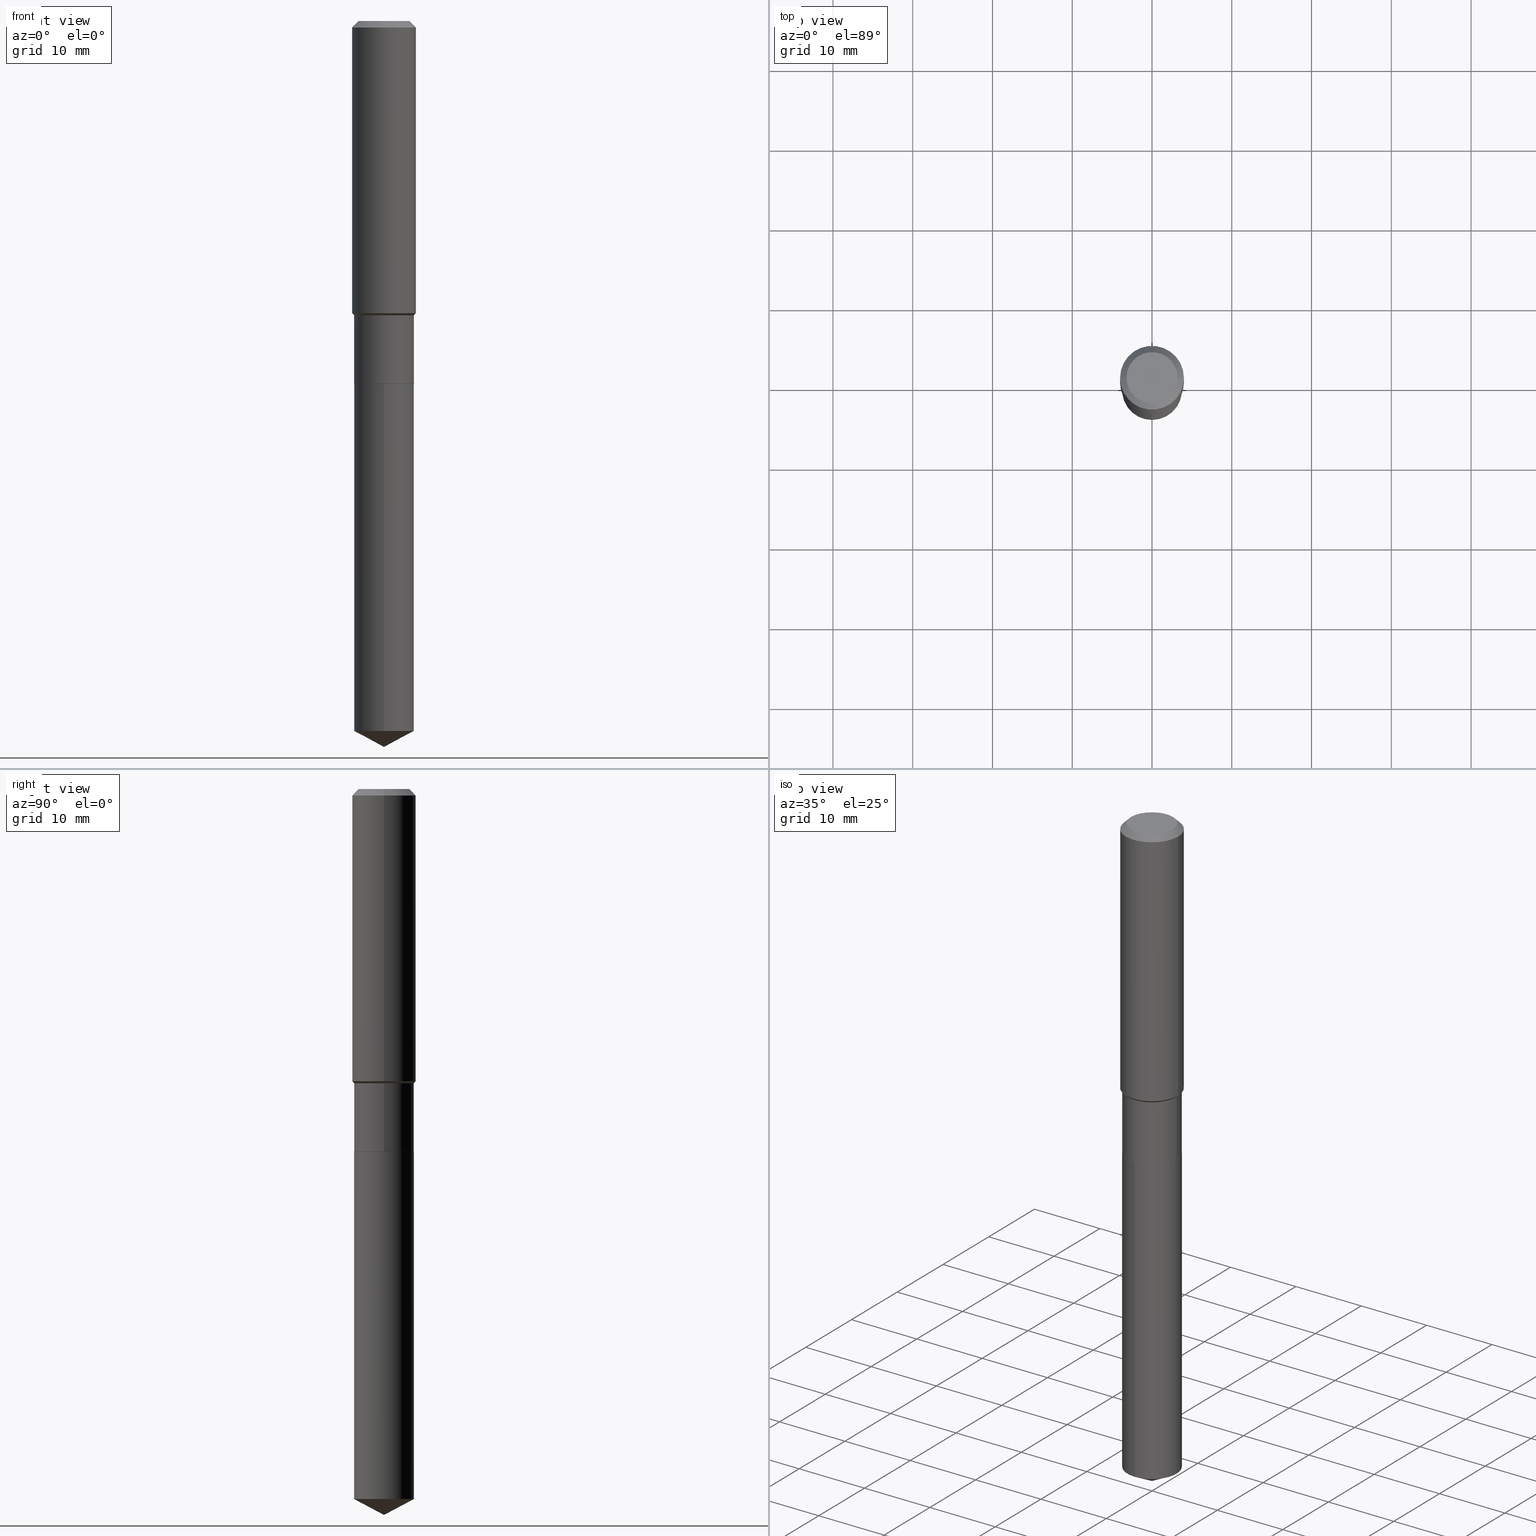
[diagram: canonical four-view strip — front | top / right | iso, engineering-drawing reading convention]
A machine part, canonical four-view strip (front | top / right | iso — engineering-drawing reading convention). The complete STEP part file that produces these views, byte-faithful:
ISO-10303-21;
HEADER;
FILE_DESCRIPTION (( 'STEP AP203' ),
    '1' );
FILE_NAME ('65205.STEP',
    '2024-04-24T21:21:38',
    ( '' ),
    ( '' ),
    'SwSTEP 2.0',
    'SolidWorks 2023',
    '' );
FILE_SCHEMA (( 'CONFIG_CONTROL_DESIGN' ));
ENDSEC;

DATA;
#1 = CARTESIAN_POINT ( 'NONE',  ( 7.703226739483228723E-31, -1.099816621735597661E-16, -0.03150000000000019451 ) ) ;
#2 = VERTEX_POINT ( 'NONE', #211 ) ;
#3 = CARTESIAN_POINT ( 'NONE',  ( 7.703226739483228723E-31, -1.099816621735597661E-16, -0.03150000000000019451 ) ) ;
#4 = VERTEX_POINT ( 'NONE', #469 ) ;
#5 = PRODUCT_DEFINITION_SHAPE ( 'NONE', 'NONE',  #470 ) ;
#6 = VECTOR ( 'NONE', #87, 39.37007874015748143 ) ;
#7 = LINE ( 'NONE', #136, #232 ) ;
#8 =( GEOMETRIC_REPRESENTATION_CONTEXT ( 3 ) GLOBAL_UNCERTAINTY_ASSIGNED_CONTEXT ( ( #423 ) ) GLOBAL_UNIT_ASSIGNED_CONTEXT ( ( #358, #226, #34 ) ) REPRESENTATION_CONTEXT ( 'NONE', 'WORKASPACE' ) );
#9 = CARTESIAN_POINT ( 'NONE',  ( 1.049116349349873935E-15, 0.1476499999999937585, -1.791400000000000992 ) ) ;
#10 = ORIENTED_EDGE ( 'NONE', *, *, #277, .F. ) ;
#11 = LINE ( 'NONE', #159, #6 ) ;
#12 = EDGE_LOOP ( 'NONE', ( #354, #487, #466, #325 ) ) ;
#13 = DIRECTION ( 'NONE',  ( 1.000000000000000000, -6.982962677686265922E-15, 0.000000000000000000 ) ) ;
#14 = ORIENTED_EDGE ( 'NONE', *, *, #351, .T. ) ;
#15 = EDGE_CURVE ( 'NONE', #363, #207, #479, .T. ) ;
#16 = EDGE_CURVE ( 'NONE', #276, #279, #326, .T. ) ;
#17 = PERSON_AND_ORGANIZATION ( #345, #250 ) ;
#18 = DIRECTION ( 'NONE',  ( -6.165590087286841551E-15, -0.8829475928589272105, 0.4694715627858901952 ) ) ;
#19 = CARTESIAN_POINT ( 'NONE',  ( -0.1471500000000000030, -5.209076034732624821E-15, -1.791400000000000547 ) ) ;
#20 = AXIS2_PLACEMENT_3D ( 'NONE', #338, #251, #30 ) ;
#21 = CIRCLE ( 'NONE', #91, 0.1476500000000000035 ) ;
#22 = CARTESIAN_POINT ( 'NONE',  ( 8.761382163988105079E-29, -1.250893018780210284E-14, -3.582699999999999996 ) ) ;
#23 = DIRECTION ( 'NONE',  ( 1.000000000000000000, 0.000000000000000000, 0.000000000000000000 ) ) ;
#24 = CC_DESIGN_DATE_AND_TIME_ASSIGNMENT ( #486, #483, ( #233 ) ) ;
#25 = PERSON_AND_ORGANIZATION_ROLE ( 'design_owner' ) ;
#26 = DIRECTION ( 'NONE',  ( 0.7071067811865451302, -7.319954787623248157E-15, -0.7071067811865499042 ) ) ;
#27 = VECTOR ( 'NONE', #169, 39.37007874015748143 ) ;
#28 = FACE_OUTER_BOUND ( 'NONE', #162, .T. ) ;
#29 = LOCAL_TIME ( 17, 21, 38.00000000000000000, #374 ) ;
#30 = DIRECTION ( 'NONE',  ( 1.000000000000000000, -6.982962677686270655E-15, 0.000000000000000000 ) ) ;
#31 = SECURITY_CLASSIFICATION_LEVEL ( 'unclassified' ) ;
#32 = DIRECTION ( 'NONE',  ( 1.000000000000000000, -6.982962677686265133E-15, 0.000000000000000000 ) ) ;
#33 = AXIS2_PLACEMENT_3D ( 'NONE', #129, #366, #13 ) ;
#34 =( NAMED_UNIT ( * ) SI_UNIT ( $, .STERADIAN. ) SOLID_ANGLE_UNIT ( ) );
#35 = PERSON_AND_ORGANIZATION ( #345, #250 ) ;
#36 = AXIS2_PLACEMENT_3D ( 'NONE', #202, #355, #318 ) ;
#37 = ORIENTED_EDGE ( 'NONE', *, *, #180, .F. ) ;
#38 = FACE_OUTER_BOUND ( 'NONE', #433, .T. ) ;
#39 = DIRECTION ( 'NONE',  ( -1.000000000000000000, 6.982962677686265922E-15, 0.000000000000000000 ) ) ;
#40 = ADVANCED_BREP_SHAPE_REPRESENTATION ( '65205', ( #284, #274, #317 ), #8 ) ;
#41 = CARTESIAN_POINT ( 'NONE',  ( 0.1476500000000000035, -7.283928369094568636E-15, -1.790900000000000603 ) ) ;
#42 = ORIENTED_EDGE ( 'NONE', *, *, #140, .T. ) ;
#43 = EDGE_CURVE ( 'NONE', #4, #102, #437, .T. ) ;
#44 = CARTESIAN_POINT ( 'NONE',  ( -0.1575000000000000011, -1.453156780537057804E-15, -0.03150000000000019451 ) ) ;
#45 = LINE ( 'NONE', #19, #27 ) ;
#46 = VERTEX_POINT ( 'NONE', #191 ) ;
#47 = AXIS2_PLACEMENT_3D ( 'NONE', #172, #175, #215 ) ;
#48 = CIRCLE ( 'NONE', #20, 0.1476500000000000035 ) ;
#49 = DIRECTION ( 'NONE',  ( 1.000000000000000000, -6.982962677686267499E-15, 0.000000000000000000 ) ) ;
#50 = VECTOR ( 'NONE', #74, 39.37007874015748143 ) ;
#51 = DIRECTION ( 'NONE',  ( -2.445434790539434935E-29, 3.491530051183840946E-15, 1.000000000000000000 ) ) ;
#52 = ORIENTED_EDGE ( 'NONE', *, *, #195, .F. ) ;
#53 = ORIENTED_EDGE ( 'NONE', *, *, #176, .T. ) ;
#54 = EDGE_CURVE ( 'NONE', #260, #363, #181, .T. ) ;
#55 = FACE_OUTER_BOUND ( 'NONE', #228, .T. ) ;
#56 = ORIENTED_EDGE ( 'NONE', *, *, #116, .T. ) ;
#57 = CALENDAR_DATE ( 2024, 24, 4 ) ;
#58 = CARTESIAN_POINT ( 'NONE',  ( -0.1260000000000000009, 9.348441284752484904E-16, 3.860086710906114178E-18 ) ) ;
#59 = CONICAL_SURFACE ( 'NONE', #357, 0.1476499999999999757, 0.7853981633974491672 ) ;
#60 = LOCAL_TIME ( 17, 21, 38.00000000000000000, #287 ) ;
#61 = COORDINATED_UNIVERSAL_TIME_OFFSET ( 5, 0, .BEHIND. ) ;
#62 = CC_DESIGN_PERSON_AND_ORGANIZATION_ASSIGNMENT ( #135, #25, ( #390 ) ) ;
#63 = CARTESIAN_POINT ( 'NONE',  ( -0.1476499999999999757, -4.611796919383547288E-15, -1.451799999999999979 ) ) ;
#64 = AXIS2_PLACEMENT_3D ( 'NONE', #155, #313, #201 ) ;
#65 = FACE_OUTER_BOUND ( 'NONE', #272, .T. ) ;
#66 = AXIS2_PLACEMENT_3D ( 'NONE', #436, #95, #107 ) ;
#67 = CALENDAR_DATE ( 2024, 24, 4 ) ;
#68 = DIRECTION ( 'NONE',  ( -2.445468806185136597E-29, 3.491481338843145583E-15, 1.000000000000000000 ) ) ;
#69 = LINE ( 'NONE', #378, #50 ) ;
#70 = PERSON_AND_ORGANIZATION_ROLE ( 'creator' ) ;
#71 = FACE_OUTER_BOUND ( 'NONE', #157, .T. ) ;
#72 = DIRECTION ( 'NONE',  ( -2.445468806185136597E-29, 3.491481338843145583E-15, 1.000000000000000000 ) ) ;
#73 = PERSON_AND_ORGANIZATION_ROLE ( 'classification_officer' ) ;
#74 = DIRECTION ( 'NONE',  ( -0.7071067811865481278, 7.493145998870357316E-15, 0.7071067811865469066 ) ) ;
#75 = VECTOR ( 'NONE', #51, 39.37007874015748143 ) ;
#76 = APPLICATION_CONTEXT ( 'configuration controlled 3d designs of mechanical parts and assemblies' ) ;
#77 = ADVANCED_FACE ( 'NONE', ( #186 ), #457, .T. ) ;
#78 = PLANE ( 'NONE',  #111 ) ;
#79 = LENGTH_MEASURE_WITH_UNIT ( LENGTH_MEASURE( 0.02539999999999999897 ), #229 );
#80 = ORIENTED_EDGE ( 'NONE', *, *, #153, .F. ) ;
#81 = CIRCLE ( 'NONE', #367, 0.1575000000000001676 ) ;
#82 = CIRCLE ( 'NONE', #394, 0.1476500000000000035 ) ;
#83 = ORIENTED_EDGE ( 'NONE', *, *, #195, .T. ) ;
#84 = PLANE ( 'NONE',  #254 ) ;
#85 = ORIENTED_EDGE ( 'NONE', *, *, #16, .F. ) ;
#86 = CARTESIAN_POINT ( 'NONE',  ( -9.439721640706201686E-47, 1.347742071746726764E-32, 3.860086710912459732E-18 ) ) ;
#87 = DIRECTION ( 'NONE',  ( 0.7071067811865481278, -2.468850131082263371E-15, 0.7071067811865469066 ) ) ;
#88 = ORIENTED_EDGE ( 'NONE', *, *, #381, .T. ) ;
#89 = VECTOR ( 'NONE', #465, 39.37007874015748143 ) ;
#90 = ADVANCED_FACE ( 'NONE', ( #265 ), #84, .F. ) ;
#91 = AXIS2_PLACEMENT_3D ( 'NONE', #106, #216, #450 ) ;
#92 = ORIENTED_EDGE ( 'NONE', *, *, #283, .T. ) ;
#93 = VERTEX_POINT ( 'NONE', #428 ) ;
#94 = FACE_OUTER_BOUND ( 'NONE', #454, .T. ) ;
#95 = DIRECTION ( 'NONE',  ( -2.445434790539434935E-29, 3.491530051183840946E-15, 1.000000000000000000 ) ) ;
#96 = AXIS2_PLACEMENT_3D ( 'NONE', #3, #156, #458 ) ;
#97 = APPROVAL_PERSON_ORGANIZATION ( #35, #455, #308 ) ;
#98 = ADVANCED_FACE ( 'NONE', ( #353 ), #282, .T. ) ;
#99 = CARTESIAN_POINT ( 'NONE',  ( 0.000000000000000000, 0.000000000000000000, 0.000000000000000000 ) ) ;
#100 = ADVANCED_FACE ( 'NONE', ( #285 ), #397, .T. ) ;
#101 = DIRECTION ( 'NONE',  ( 1.000000000000000000, -6.982962677686267499E-15, 4.876176775795936353E-29 ) ) ;
#102 = VERTEX_POINT ( 'NONE', #9 ) ;
#103 = APPROVAL_PERSON_ORGANIZATION ( #329, #395, #297 ) ;
#104 = ORIENTED_EDGE ( 'NONE', *, *, #180, .T. ) ;
#105 = DIRECTION ( 'NONE',  ( -6.982962677686266711E-15, -1.000000000000000000, 3.700437512582815297E-15 ) ) ;
#106 = CARTESIAN_POINT ( 'NONE',  ( 4.380812819400054846E-29, -6.254639670403612266E-15, -1.791400000000000547 ) ) ;
#107 = DIRECTION ( 'NONE',  ( -6.982962677686267499E-15, -1.000000000000000000, 3.541896320645544303E-15 ) ) ;
#108 = CARTESIAN_POINT ( 'NONE',  ( 4.380812819400054846E-29, -6.254639670403612266E-15, -1.791400000000000547 ) ) ;
#109 = VERTEX_POINT ( 'NONE', #122 ) ;
#110 = APPROVAL ( #476, 'UNSPECIFIED' ) ;
#111 = AXIS2_PLACEMENT_3D ( 'NONE', #340, #485, #452 ) ;
#112 = EDGE_CURVE ( 'NONE', #279, #109, #11, .T. ) ;
#113 = CC_DESIGN_APPROVAL ( #455, ( #233 ) ) ;
#114 = ORIENTED_EDGE ( 'NONE', *, *, #141, .T. ) ;
#115 = EDGE_LOOP ( 'NONE', ( #123, #114, #431, #456 ) ) ;
#116 = EDGE_CURVE ( 'NONE', #2, #207, #264, .T. ) ;
#117 = ORIENTED_EDGE ( 'NONE', *, *, #153, .T. ) ;
#118 = CIRCLE ( 'NONE', #96, 0.1575000000000000011 ) ;
#119 = FACE_OUTER_BOUND ( 'NONE', #164, .T. ) ;
#120 = ORIENTED_EDGE ( 'NONE', *, *, #406, .T. ) ;
#121 = FACE_OUTER_BOUND ( 'NONE', #224, .T. ) ;
#122 = CARTESIAN_POINT ( 'NONE',  ( 0.1575000000000001676, -6.134358138280461598E-15, -1.441949999999999843 ) ) ;
#123 = ORIENTED_EDGE ( 'NONE', *, *, #140, .F. ) ;
#124 = FACE_OUTER_BOUND ( 'NONE', #12, .T. ) ;
#125 = ORIENTED_EDGE ( 'NONE', *, *, #165, .T. ) ;
#126 = EDGE_CURVE ( 'NONE', #93, #280, #45, .T. ) ;
#127 = CLOSED_SHELL ( 'NONE', ( #463, #384, #170, #477, #480 ) ) ;
#128 = CONICAL_SURFACE ( 'NONE', #194, 0.1575000000000000011, 0.7853981633974449483 ) ;
#129 = CARTESIAN_POINT ( 'NONE',  ( 7.703226739483228723E-31, -1.099816621735597661E-16, -0.03150000000000019451 ) ) ;
#130 = VERTEX_POINT ( 'NONE', #163 ) ;
#131 = PERSON_AND_ORGANIZATION_ROLE ( 'creator' ) ;
#132 = CARTESIAN_POINT ( 'NONE',  ( -1.031034439360333500E-15, -0.1476500000000062485, -1.791399999999999881 ) ) ;
#133 = CARTESIAN_POINT ( 'NONE',  ( 0.1575000000000000844, -1.099816621735587677E-15, 7.679978421878603638E-30 ) ) ;
#134 = ADVANCED_FACE ( 'NONE', ( #124 ), #59, .T. ) ;
#135 = PERSON_AND_ORGANIZATION ( #345, #250 ) ;
#136 = CARTESIAN_POINT ( 'NONE',  ( 0.1471500000000000030, -7.282182628425146343E-15, -1.791400000000000547 ) ) ;
#137 = CONICAL_SURFACE ( 'NONE', #346, 74.04434902938388063, 1.082104136236488490 ) ;
#138 = AXIS2_PLACEMENT_3D ( 'NONE', #261, #416, #401 ) ;
#139 = LINE ( 'NONE', #133, #392 ) ;
#140 = EDGE_CURVE ( 'NONE', #130, #102, #330, .T. ) ;
#141 = EDGE_CURVE ( 'NONE', #130, #424, #273, .T. ) ;
#142 = LINE ( 'NONE', #371, #402 ) ;
#143 = CYLINDRICAL_SURFACE ( 'NONE', #183, 0.1476500000000000035 ) ;
#144 = CC_DESIGN_PERSON_AND_ORGANIZATION_ASSIGNMENT ( #196, #70, ( #403 ) ) ;
#145 = EDGE_LOOP ( 'NONE', ( #104, #396 ) ) ;
#146 = CALENDAR_DATE ( 2024, 24, 4 ) ;
#147 = DIRECTION ( 'NONE',  ( -2.445468806185136597E-29, 3.491481338843145583E-15, 1.000000000000000000 ) ) ;
#148 = EDGE_CURVE ( 'NONE', #424, #4, #324, .T. ) ;
#149 = COORDINATED_UNIVERSAL_TIME_OFFSET ( 5, 0, .BEHIND. ) ;
#150 = CIRCLE ( 'NONE', #379, 0.1260000000000000009 ) ;
#151 = DIRECTION ( 'NONE',  ( 1.000000000000000000, -6.982962677686270655E-15, 0.000000000000000000 ) ) ;
#152 = ORIENTED_EDGE ( 'NONE', *, *, #141, .F. ) ;
#153 = EDGE_CURVE ( 'NONE', #46, #207, #237, .T. ) ;
#154 = VERTEX_POINT ( 'NONE', #41 ) ;
#155 = CARTESIAN_POINT ( 'NONE',  ( 4.380812819400054846E-29, -6.254639670403612266E-15, -1.791400000000000547 ) ) ;
#156 = DIRECTION ( 'NONE',  ( -2.445468806185136597E-29, 3.491481338843145583E-15, 1.000000000000000000 ) ) ;
#157 = EDGE_LOOP ( 'NONE', ( #83, #117, #247, #235 ) ) ;
#158 = CIRCLE ( 'NONE', #409, 0.1575000000000001676 ) ;
#159 = CARTESIAN_POINT ( 'NONE',  ( 0.1476499999999999757, -6.099967047092856006E-15, -1.451799999999999979 ) ) ;
#160 = ORIENTED_EDGE ( 'NONE', *, *, #126, .T. ) ;
#161 = DIRECTION ( 'NONE',  ( -2.445468806185136597E-29, 3.491481338843145583E-15, 1.000000000000000000 ) ) ;
#162 = EDGE_LOOP ( 'NONE', ( #442, #42, #193, #312 ) ) ;
#163 = CARTESIAN_POINT ( 'NONE',  ( 1.049116349349873738E-15, 0.1476499999999878188, -3.504193102415183780 ) ) ;
#164 = EDGE_LOOP ( 'NONE', ( #311, #266, #152 ) ) ;
#165 = EDGE_CURVE ( 'NONE', #207, #2, #118, .T. ) ;
#166 = AXIS2_PLACEMENT_3D ( 'NONE', #399, #337, #32 ) ;
#167 = VECTOR ( 'NONE', #18, 39.37007874015748854 ) ;
#168 = LINE ( 'NONE', #22, #243 ) ;
#169 = DIRECTION ( 'NONE',  ( -0.7071067811866320607, 7.493145998870660238E-15, 0.7071067811864629737 ) ) ;
#170 = ADVANCED_FACE ( 'NONE', ( #119 ), #137, .T. ) ;
#171 = DATE_TIME_ROLE ( 'creation_date' ) ;
#172 = CARTESIAN_POINT ( 'NONE',  ( 4.380812819400054846E-29, -6.254639670403612266E-15, -1.791400000000000547 ) ) ;
#173 = CYLINDRICAL_SURFACE ( 'NONE', #256, 0.1575000000000000844 ) ;
#174 = AXIS2_PLACEMENT_3D ( 'NONE', #1, #234, #39 ) ;
#175 = DIRECTION ( 'NONE',  ( -2.445468806185136597E-29, 3.491481338843145583E-15, 1.000000000000000000 ) ) ;
#176 = EDGE_CURVE ( 'NONE', #279, #276, #223, .T. ) ;
#177 = DIRECTION ( 'NONE',  ( -1.000000000000000000, 6.982962677686265922E-15, 0.000000000000000000 ) ) ;
#178 = FACE_OUTER_BOUND ( 'NONE', #115, .T. ) ;
#179 = CYLINDRICAL_SURFACE ( 'NONE', #373, 0.1476500000000000035 ) ;
#180 = EDGE_CURVE ( 'NONE', #363, #260, #150, .T. ) ;
#181 = CIRCLE ( 'NONE', #444, 0.1260000000000000009 ) ;
#182 = CARTESIAN_POINT ( 'NONE',  ( 4.380812819400054846E-29, -6.254639670403612266E-15, -1.791400000000000547 ) ) ;
#183 = AXIS2_PLACEMENT_3D ( 'NONE', #412, #68, #377 ) ;
#184 = ADVANCED_FACE ( 'NONE', ( #121 ), #218, .T. ) ;
#185 = DATE_AND_TIME ( #67, #334 ) ;
#186 = FACE_OUTER_BOUND ( 'NONE', #393, .T. ) ;
#187 = ORIENTED_EDGE ( 'NONE', *, *, #15, .T. ) ;
#188 = COORDINATED_UNIVERSAL_TIME_OFFSET ( 5, 0, .BEHIND. ) ;
#189 = CARTESIAN_POINT ( 'NONE',  ( 8.761259224065633087E-29, -1.250910471437634670E-14, -3.582699999999999996 ) ) ;
#190 = DATE_AND_TIME ( #146, #380 ) ;
#191 = CARTESIAN_POINT ( 'NONE',  ( -0.1575000000000001676, -3.915436707722714937E-15, -1.441949999999999843 ) ) ;
#192 = VECTOR ( 'NONE', #263, 39.37007874015748143 ) ;
#193 = ORIENTED_EDGE ( 'NONE', *, *, #43, .F. ) ;
#194 = AXIS2_PLACEMENT_3D ( 'NONE', #299, #336, #177 ) ;
#195 = EDGE_CURVE ( 'NONE', #109, #46, #158, .T. ) ;
#196 = PERSON_AND_ORGANIZATION ( #345, #250 ) ;
#197 = ORIENTED_EDGE ( 'NONE', *, *, #15, .F. ) ;
#198 = DIRECTION ( 'NONE',  ( -2.445434790539434935E-29, 3.491530051183840946E-15, 1.000000000000000000 ) ) ;
#199 = ORIENTED_EDGE ( 'NONE', *, *, #43, .T. ) ;
#200 = DIMENSIONAL_EXPONENTS ( 1.000000000000000000, 0.000000000000000000, 0.000000000000000000, 0.000000000000000000, 0.000000000000000000, 0.000000000000000000, 0.000000000000000000 ) ;
#201 = DIRECTION ( 'NONE',  ( 1.000000000000000000, -6.982962677686267499E-15, 0.000000000000000000 ) ) ;
#202 = CARTESIAN_POINT ( 'NONE',  ( 3.550331612819581366E-29, -5.068932607732478922E-15, -1.451799999999999979 ) ) ;
#203 = ORIENTED_EDGE ( 'NONE', *, *, #481, .F. ) ;
#204 = VECTOR ( 'NONE', #210, 39.37007874015748143 ) ;
#205 = ADVANCED_FACE ( 'NONE', ( #55 ), #292, .T. ) ;
#206 = CARTESIAN_POINT ( 'NONE',  ( 8.569336661042116655E-29, -1.223490825894662631E-14, -3.504193102415183336 ) ) ;
#207 = VERTEX_POINT ( 'NONE', #44 ) ;
#208 = CARTESIAN_POINT ( 'NONE',  ( 0.000000000000000000, 0.000000000000000000, 0.000000000000000000 ) ) ;
#209 = VERTEX_POINT ( 'NONE', #352 ) ;
#210 = DIRECTION ( 'NONE',  ( -2.445468806185136877E-29, 3.491481338843145188E-15, 1.000000000000000000 ) ) ;
#211 = CARTESIAN_POINT ( 'NONE',  ( 0.1575000000000000011, -1.209798283909146741E-15, -0.03150000000000019451 ) ) ;
#212 = AXIS2_PLACEMENT_3D ( 'NONE', #108, #482, #447 ) ;
#213 = APPROVAL_DATE_TIME ( #364, #395 ) ;
#214 = CARTESIAN_POINT ( 'NONE',  ( -0.1476500000000000312, -4.611796919383546499E-15, -1.790900000000000603 ) ) ;
#215 = DIRECTION ( 'NONE',  ( 1.000000000000000000, -6.982962677686267499E-15, 0.000000000000000000 ) ) ;
#216 = DIRECTION ( 'NONE',  ( -2.445434790539434935E-29, 3.491530051183840946E-15, 1.000000000000000000 ) ) ;
#217 = CC_DESIGN_PERSON_AND_ORGANIZATION_ASSIGNMENT ( #220, #417, ( #403 ) ) ;
#218 = CONICAL_SURFACE ( 'NONE', #425, 0.1471500000000000030, 0.7853981633975678500 ) ;
#219 = CARTESIAN_POINT ( 'NONE',  ( -1.031034439360291887E-15, -0.1476500000000122992, -3.504193102415182892 ) ) ;
#220 = PERSON_AND_ORGANIZATION ( #345, #250 ) ;
#221 = DESIGN_CONTEXT ( 'detailed design', #76, 'design' ) ;
#222 = EDGE_CURVE ( 'NONE', #93, #209, #421, .T. ) ;
#223 = CIRCLE ( 'NONE', #36, 0.1476499999999999757 ) ;
#224 = EDGE_LOOP ( 'NONE', ( #319, #459, #415, #10 ) ) ;
#225 = CC_DESIGN_SECURITY_CLASSIFICATION ( #233, ( #403 ) ) ;
#226 =( NAMED_UNIT ( * ) PLANE_ANGLE_UNIT ( ) SI_UNIT ( $, .RADIAN. ) );
#227 = EDGE_CURVE ( 'NONE', #209, #154, #7, .T. ) ;
#228 = EDGE_LOOP ( 'NONE', ( #245, #37, #187, #125 ) ) ;
#229 =( LENGTH_UNIT ( ) NAMED_UNIT ( * ) SI_UNIT ( $, .METRE. ) );
#230 = PRODUCT_RELATED_PRODUCT_CATEGORY ( 'detail', '', ( #390 ) ) ;
#231 = ORIENTED_EDGE ( 'NONE', *, *, #277, .T. ) ;
#232 = VECTOR ( 'NONE', #440, 39.37007874015748143 ) ;
#233 = SECURITY_CLASSIFICATION ( '', '', #31 ) ;
#234 = DIRECTION ( 'NONE',  ( 2.445468806185136597E-29, -3.491481338843145583E-15, -1.000000000000000000 ) ) ;
#235 = ORIENTED_EDGE ( 'NONE', *, *, #259, .F. ) ;
#236 = CARTESIAN_POINT ( 'NONE',  ( 4.380812819400054846E-29, -6.254639670403612266E-15, -1.791400000000000547 ) ) ;
#237 = LINE ( 'NONE', #289, #468 ) ;
#238 = ORIENTED_EDGE ( 'NONE', *, *, #239, .T. ) ;
#239 = EDGE_CURVE ( 'NONE', #280, #276, #375, .T. ) ;
#240 = CARTESIAN_POINT ( 'NONE',  ( 4.380812819400054846E-29, -6.254639670403612266E-15, -1.791400000000000547 ) ) ;
#241 = ORIENTED_EDGE ( 'NONE', *, *, #406, .F. ) ;
#242 = AXIS2_PLACEMENT_3D ( 'NONE', #208, #362, #244 ) ;
#243 = VECTOR ( 'NONE', #331, 39.37007874015748854 ) ;
#244 = DIRECTION ( 'NONE',  ( 1.000000000000000000, -6.982962677686266711E-15, 4.876176775795935793E-29 ) ) ;
#245 = ORIENTED_EDGE ( 'NONE', *, *, #307, .F. ) ;
#246 = CARTESIAN_POINT ( 'NONE',  ( 3.526243745078657437E-29, -5.034541516544873329E-15, -1.441949999999999843 ) ) ;
#247 = ORIENTED_EDGE ( 'NONE', *, *, #116, .F. ) ;
#248 = DATE_AND_TIME ( #57, #60 ) ;
#249 = CARTESIAN_POINT ( 'NONE',  ( 0.1260000000000000009, -1.027466422270894443E-15, 3.860086710919128072E-18 ) ) ;
#250 = ORGANIZATION ( 'UNSPECIFIED', 'UNSPECIFIED', '' ) ;
#251 = DIRECTION ( 'NONE',  ( -2.445468806185136597E-29, 3.491481338843145583E-15, 1.000000000000000000 ) ) ;
#252 = DIRECTION ( 'NONE',  ( -2.445468806185136597E-29, 3.491481338843145583E-15, 1.000000000000000000 ) ) ;
#253 = DIRECTION ( 'NONE',  ( -2.445468806185136597E-29, 3.491481338843145583E-15, 1.000000000000000000 ) ) ;
#254 = AXIS2_PLACEMENT_3D ( 'NONE', #391, #467, #359 ) ;
#255 = LINE ( 'NONE', #400, #489 ) ;
#256 = AXIS2_PLACEMENT_3D ( 'NONE', #99, #252, #101 ) ;
#257 = EDGE_LOOP ( 'NONE', ( #386, #160, #241, #306 ) ) ;
#258 = DIRECTION ( 'NONE',  ( -2.445434790539434935E-29, 3.491530051183840946E-15, 1.000000000000000000 ) ) ;
#259 = EDGE_CURVE ( 'NONE', #109, #2, #139, .T. ) ;
#260 = VERTEX_POINT ( 'NONE', #249 ) ;
#261 = CARTESIAN_POINT ( 'NONE',  ( 4.380812819400054846E-29, -6.254639670403612266E-15, -1.791400000000000547 ) ) ;
#262 = CARTESIAN_POINT ( 'NONE',  ( -9.439721640706201686E-47, 1.347742071746726764E-32, 3.860086710912459732E-18 ) ) ;
#263 = DIRECTION ( 'NONE',  ( -0.7071067811865451302, 2.468850131082231817E-15, -0.7071067811865499042 ) ) ;
#264 = CIRCLE ( 'NONE', #33, 0.1575000000000000011 ) ;
#265 = FACE_OUTER_BOUND ( 'NONE', #145, .T. ) ;
#266 = ORIENTED_EDGE ( 'NONE', *, *, #370, .T. ) ;
#267 = CONICAL_SURFACE ( 'NONE', #66, 74.04434902938388063, 1.082104136236488490 ) ;
#268 = DIRECTION ( 'NONE',  ( -2.445434790539434935E-29, 3.491530051183840946E-15, 1.000000000000000000 ) ) ;
#269 = DIRECTION ( 'NONE',  ( -2.445468806185136597E-29, 3.491481338843145583E-15, 1.000000000000000000 ) ) ;
#270 = EDGE_LOOP ( 'NONE', ( #350, #434 ) ) ;
#271 = DIRECTION ( 'NONE',  ( -2.445468806185136597E-29, 3.491481338843145583E-15, 1.000000000000000000 ) ) ;
#272 = EDGE_LOOP ( 'NONE', ( #120, #238, #286, #383 ) ) ;
#273 = CIRCLE ( 'NONE', #316, 0.1476500000000000035 ) ;
#274 = MANIFOLD_SOLID_BREP ( 'Body-Move/Copy2[2]', #408 ) ;
#275 = CARTESIAN_POINT ( 'NONE',  ( -8.751564009776472655E-28, 1.249527955876446729E-13, 35.78737874015747877 ) ) ;
#276 = VERTEX_POINT ( 'NONE', #63 ) ;
#277 = EDGE_CURVE ( 'NONE', #280, #154, #48, .T. ) ;
#278 = DIRECTION ( 'NONE',  ( -2.445468806185136597E-29, 3.491481338843145583E-15, 1.000000000000000000 ) ) ;
#279 = VERTEX_POINT ( 'NONE', #372 ) ;
#280 = VERTEX_POINT ( 'NONE', #214 ) ;
#281 = CARTESIAN_POINT ( 'NONE',  ( 0.000000000000000000, 0.000000000000000000, 0.000000000000000000 ) ) ;
#282 = CONICAL_SURFACE ( 'NONE', #342, 0.1471500000000000030, 0.7853981633975678500 ) ;
#283 = EDGE_CURVE ( 'NONE', #46, #109, #81, .T. ) ;
#284 = MANIFOLD_SOLID_BREP ( 'Body-Move/Copy2[1]', #127 ) ;
#285 = FACE_OUTER_BOUND ( 'NONE', #398, .T. ) ;
#286 = ORIENTED_EDGE ( 'NONE', *, *, #176, .F. ) ;
#287 = COORDINATED_UNIVERSAL_TIME_OFFSET ( 5, 0, .BEHIND. ) ;
#288 = DIRECTION ( 'NONE',  ( -2.445468806185136597E-29, 3.491481338843145583E-15, 1.000000000000000000 ) ) ;
#289 = CARTESIAN_POINT ( 'NONE',  ( -0.1575000000000000844, 1.119104808822158392E-15, -7.747322767151481189E-30 ) ) ;
#290 = LINE ( 'NONE', #369, #167 ) ;
#291 = APPLICATION_CONTEXT ( 'configuration controlled 3d designs of mechanical parts and assemblies' ) ;
#292 = CONICAL_SURFACE ( 'NONE', #174, 0.1575000000000000011, 0.7853981633974449483 ) ;
#293 = DIRECTION ( 'NONE',  ( -2.445468806185136877E-29, 3.491481338843145188E-15, 1.000000000000000000 ) ) ;
#294 = CC_DESIGN_PERSON_AND_ORGANIZATION_ASSIGNMENT ( #17, #131, ( #470 ) ) ;
#295 = DIRECTION ( 'NONE',  ( 0.000000000000000000, 0.000000000000000000, 1.000000000000000000 ) ) ;
#296 = EDGE_CURVE ( 'NONE', #209, #93, #333, .T. ) ;
#297 = APPROVAL_ROLE ( '' ) ;
#298 = CARTESIAN_POINT ( 'NONE',  ( 0.000000000000000000, 0.000000000000000000, 0.000000000000000000 ) ) ;
#299 = CARTESIAN_POINT ( 'NONE',  ( 7.703226739483228723E-31, -1.099816621735597661E-16, -0.03150000000000019451 ) ) ;
#300 = AXIS2_PLACEMENT_3D ( 'NONE', #484, #147, #305 ) ;
#301 = FACE_OUTER_BOUND ( 'NONE', #270, .T. ) ;
#302 = AXIS2_PLACEMENT_3D ( 'NONE', #298, #253, #376 ) ;
#303 = ORIENTED_EDGE ( 'NONE', *, *, #239, .F. ) ;
#304 = SHAPE_DEFINITION_REPRESENTATION ( #5, #40 ) ;
#305 = DIRECTION ( 'NONE',  ( 1.000000000000000000, -6.982962677686265133E-15, 0.000000000000000000 ) ) ;
#306 = ORIENTED_EDGE ( 'NONE', *, *, #227, .F. ) ;
#307 = EDGE_CURVE ( 'NONE', #260, #2, #142, .T. ) ;
#308 = APPROVAL_ROLE ( '' ) ;
#309 = DIRECTION ( 'NONE',  ( -2.445434790539434935E-29, 3.491530051183840946E-15, 1.000000000000000000 ) ) ;
#310 = PERSON_AND_ORGANIZATION ( #345, #250 ) ;
#311 = ORIENTED_EDGE ( 'NONE', *, *, #381, .F. ) ;
#312 = ORIENTED_EDGE ( 'NONE', *, *, #148, .F. ) ;
#313 = DIRECTION ( 'NONE',  ( -2.445468806185136597E-29, 3.491481338843145583E-15, 1.000000000000000000 ) ) ;
#314 = CARTESIAN_POINT ( 'NONE',  ( 3.550331612819581366E-29, -5.068932607732478922E-15, -1.451799999999999979 ) ) ;
#315 = ORIENTED_EDGE ( 'NONE', *, *, #370, .F. ) ;
#316 = AXIS2_PLACEMENT_3D ( 'NONE', #206, #198, #321 ) ;
#317 = AXIS2_PLACEMENT_3D ( 'NONE', #281, #295, #23 ) ;
#318 = DIRECTION ( 'NONE',  ( 1.000000000000000000, -6.982962677686265133E-15, 0.000000000000000000 ) ) ;
#319 = ORIENTED_EDGE ( 'NONE', *, *, #126, .F. ) ;
#320 = DIRECTION ( 'NONE',  ( -2.445468806185136597E-29, 3.491481338843145583E-15, 1.000000000000000000 ) ) ;
#321 = DIRECTION ( 'NONE',  ( -6.982962677686266711E-15, -1.000000000000000000, 3.700437512582815297E-15 ) ) ;
#322 = EDGE_LOOP ( 'NONE', ( #80, #92, #429, #462 ) ) ;
#323 = ADVANCED_FACE ( 'NONE', ( #94 ), #128, .T. ) ;
#324 = LINE ( 'NONE', #132, #89 ) ;
#325 = ORIENTED_EDGE ( 'NONE', *, *, #283, .F. ) ;
#326 = CIRCLE ( 'NONE', #166, 0.1476499999999999757 ) ;
#327 = CC_DESIGN_PERSON_AND_ORGANIZATION_ASSIGNMENT ( #310, #73, ( #233 ) ) ;
#328 = CC_DESIGN_APPROVAL ( #395, ( #470 ) ) ;
#329 = PERSON_AND_ORGANIZATION ( #345, #250 ) ;
#330 = LINE ( 'NONE', #473, #75 ) ;
#331 = DIRECTION ( 'NONE',  ( 6.273719981627772387E-15, 0.8829475928589306521, 0.4694715627858840334 ) ) ;
#332 = ADVANCED_FACE ( 'NONE', ( #441 ), #173, .T. ) ;
#333 = CIRCLE ( 'NONE', #47, 0.1471500000000000030 ) ;
#334 = LOCAL_TIME ( 17, 21, 38.00000000000000000, #61 ) ;
#335 = APPLICATION_PROTOCOL_DEFINITION ( 'international standard', 'config_control_design', 1994, #76 ) ;
#336 = DIRECTION ( 'NONE',  ( 2.445468806185136597E-29, -3.491481338843145583E-15, -1.000000000000000000 ) ) ;
#337 = DIRECTION ( 'NONE',  ( -2.445468806185136597E-29, 3.491481338843145583E-15, 1.000000000000000000 ) ) ;
#338 = CARTESIAN_POINT ( 'NONE',  ( 4.379590084996962044E-29, -6.252893929734190763E-15, -1.790900000000000603 ) ) ;
#339 = APPROVAL_ROLE ( '' ) ;
#340 = CARTESIAN_POINT ( 'NONE',  ( 4.380812819400054846E-29, -6.254639670403612266E-15, -1.791400000000000547 ) ) ;
#341 = ORIENTED_EDGE ( 'NONE', *, *, #307, .T. ) ;
#342 = AXIS2_PLACEMENT_3D ( 'NONE', #240, #278, #430 ) ;
#343 = AXIS2_PLACEMENT_3D ( 'NONE', #488, #309, #349 ) ;
#344 = APPROVAL_DATE_TIME ( #185, #110 ) ;
#345 = PERSON ( 'UNSPECIFIED', 'UNSPECIFIED', 'UNSPECIFIED', ('UNSPECIFIED'), ('UNSPECIFIED'), ('UNSPECIFIED') ) ;
#346 = AXIS2_PLACEMENT_3D ( 'NONE', #275, #388, #461 ) ;
#347 = APPROVAL_STATUS ( 'not_yet_approved' ) ;
#348 = CIRCLE ( 'NONE', #438, 0.1476500000000000035 ) ;
#349 = DIRECTION ( 'NONE',  ( -6.982962677686266711E-15, -1.000000000000000000, 3.700437512582815297E-15 ) ) ;
#350 = ORIENTED_EDGE ( 'NONE', *, *, #296, .F. ) ;
#351 = EDGE_CURVE ( 'NONE', #154, #279, #255, .T. ) ;
#352 = CARTESIAN_POINT ( 'NONE',  ( 0.1471500000000000030, -7.282182628425146343E-15, -1.791400000000000547 ) ) ;
#353 = FACE_OUTER_BOUND ( 'NONE', #257, .T. ) ;
#354 = ORIENTED_EDGE ( 'NONE', *, *, #439, .F. ) ;
#355 = DIRECTION ( 'NONE',  ( -2.445468806185136597E-29, 3.491481338843145583E-15, 1.000000000000000000 ) ) ;
#356 = ORIENTED_EDGE ( 'NONE', *, *, #112, .F. ) ;
#357 = AXIS2_PLACEMENT_3D ( 'NONE', #314, #161, #432 ) ;
#358 =( CONVERSION_BASED_UNIT ( 'INCH', #79 ) LENGTH_UNIT ( ) NAMED_UNIT ( #200 ) );
#359 = DIRECTION ( 'NONE',  ( -1.000000000000000000, 6.982962677686265922E-15, -4.876176775795935793E-29 ) ) ;
#360 = ORIENTED_EDGE ( 'NONE', *, *, #453, .T. ) ;
#361 = MECHANICAL_CONTEXT ( 'NONE', #291, 'mechanical' ) ;
#362 = DIRECTION ( 'NONE',  ( -2.445468806185136597E-29, 3.491481338843145583E-15, 1.000000000000000000 ) ) ;
#363 = VERTEX_POINT ( 'NONE', #58 ) ;
#364 = DATE_AND_TIME ( #404, #29 ) ;
#365 = CARTESIAN_POINT ( 'NONE',  ( 3.526243745078657437E-29, -5.034541516544873329E-15, -1.441949999999999843 ) ) ;
#366 = DIRECTION ( 'NONE',  ( -2.445468806185136597E-29, 3.491481338843145583E-15, 1.000000000000000000 ) ) ;
#367 = AXIS2_PLACEMENT_3D ( 'NONE', #365, #288, #478 ) ;
#368 = LOCAL_TIME ( 17, 21, 38.00000000000000000, #188 ) ;
#369 = CARTESIAN_POINT ( 'NONE',  ( 8.761259224065633087E-29, -1.250910471437634670E-14, -3.582699999999999996 ) ) ;
#370 = EDGE_CURVE ( 'NONE', #389, #424, #290, .T. ) ;
#371 = CARTESIAN_POINT ( 'NONE',  ( 0.1575000000000000011, -1.190510096822576026E-15, -0.03150000000000019451 ) ) ;
#372 = CARTESIAN_POINT ( 'NONE',  ( 0.1476499999999999757, -6.099967047092856006E-15, -1.451799999999999979 ) ) ;
#373 = AXIS2_PLACEMENT_3D ( 'NONE', #182, #258, #414 ) ;
#374 = COORDINATED_UNIVERSAL_TIME_OFFSET ( 5, 0, .BEHIND. ) ;
#375 = LINE ( 'NONE', #405, #204 ) ;
#376 = DIRECTION ( 'NONE',  ( 1.000000000000000000, -6.982962677686267499E-15, 4.876176775795936353E-29 ) ) ;
#377 = DIRECTION ( 'NONE',  ( 1.000000000000000000, -6.982962677686266711E-15, 4.876176775795935793E-29 ) ) ;
#378 = CARTESIAN_POINT ( 'NONE',  ( -0.1476499999999999757, -4.019816258382691367E-15, -1.451799999999999979 ) ) ;
#379 = AXIS2_PLACEMENT_3D ( 'NONE', #86, #320, #460 ) ;
#380 = LOCAL_TIME ( 17, 21, 38.00000000000000000, #149 ) ;
#381 = EDGE_CURVE ( 'NONE', #389, #130, #168, .T. ) ;
#382 = CC_DESIGN_DATE_AND_TIME_ASSIGNMENT ( #248, #171, ( #470 ) ) ;
#383 = ORIENTED_EDGE ( 'NONE', *, *, #351, .F. ) ;
#384 = ADVANCED_FACE ( 'NONE', ( #475 ), #267, .T. ) ;
#385 = DIRECTION ( 'NONE',  ( -2.445468806185136877E-29, 3.491481338843145188E-15, 1.000000000000000000 ) ) ;
#386 = ORIENTED_EDGE ( 'NONE', *, *, #296, .T. ) ;
#387 = DIRECTION ( 'NONE',  ( 1.000000000000000000, -6.982962677686267499E-15, 0.000000000000000000 ) ) ;
#388 = DIRECTION ( 'NONE',  ( -2.445434790539434935E-29, 3.491530051183840946E-15, 1.000000000000000000 ) ) ;
#389 = VERTEX_POINT ( 'NONE', #189 ) ;
#390 = PRODUCT ( '65205', '65205', '', ( #361 ) ) ;
#391 = CARTESIAN_POINT ( 'NONE',  ( -4.719860820353100843E-47, 6.738710358733633822E-33, 1.930043355456229866E-18 ) ) ;
#392 = VECTOR ( 'NONE', #293, 39.37007874015748143 ) ;
#393 = EDGE_LOOP ( 'NONE', ( #53, #451, #52, #356 ) ) ;
#394 = AXIS2_PLACEMENT_3D ( 'NONE', #446, #268, #105 ) ;
#395 = APPROVAL ( #472, 'UNSPECIFIED' ) ;
#396 = ORIENTED_EDGE ( 'NONE', *, *, #54, .T. ) ;
#397 = CYLINDRICAL_SURFACE ( 'NONE', #242, 0.1476500000000000035 ) ;
#398 = EDGE_LOOP ( 'NONE', ( #303, #231, #14, #85 ) ) ;
#399 = CARTESIAN_POINT ( 'NONE',  ( 3.550331612819581366E-29, -5.068932607732478922E-15, -1.451799999999999979 ) ) ;
#400 = CARTESIAN_POINT ( 'NONE',  ( 0.1476500000000000035, -1.031034439360377281E-15, 7.199675009462699686E-30 ) ) ;
#401 = DIRECTION ( 'NONE',  ( 6.982962677686265922E-15, 1.000000000000000000, -3.491530051183840946E-15 ) ) ;
#402 = VECTOR ( 'NONE', #26, 39.37007874015748143 ) ;
#403 = PRODUCT_DEFINITION_FORMATION_WITH_SPECIFIED_SOURCE ( 'ANY', '', #390, .NOT_KNOWN. ) ;
#404 = CALENDAR_DATE ( 2024, 24, 4 ) ;
#405 = CARTESIAN_POINT ( 'NONE',  ( -0.1476500000000000035, 1.049116349349787949E-15, -7.262807660761367809E-30 ) ) ;
#406 = EDGE_CURVE ( 'NONE', #154, #280, #348, .T. ) ;
#407 = DIRECTION ( 'NONE',  ( -2.445468806185136877E-29, 3.491481338843145188E-15, 1.000000000000000000 ) ) ;
#408 = CLOSED_SHELL ( 'NONE', ( #98, #323, #471, #77, #448, #100, #134, #332, #205, #90, #411, #184 ) ) ;
#409 = AXIS2_PLACEMENT_3D ( 'NONE', #246, #464, #387 ) ;
#410 = APPROVAL_PERSON_ORGANIZATION ( #474, #110, #339 ) ;
#411 = ADVANCED_FACE ( 'NONE', ( #301 ), #78, .F. ) ;
#412 = CARTESIAN_POINT ( 'NONE',  ( 0.000000000000000000, 0.000000000000000000, 0.000000000000000000 ) ) ;
#413 = ORIENTED_EDGE ( 'NONE', *, *, #54, .F. ) ;
#414 = DIRECTION ( 'NONE',  ( -6.982962677686266711E-15, -1.000000000000000000, 3.700437512582815297E-15 ) ) ;
#415 = ORIENTED_EDGE ( 'NONE', *, *, #227, .T. ) ;
#416 = DIRECTION ( 'NONE',  ( 2.445434790539434375E-29, -3.491530051183840946E-15, -1.000000000000000000 ) ) ;
#417 = PERSON_AND_ORGANIZATION_ROLE ( 'design_supplier' ) ;
#418 = DIRECTION ( 'NONE',  ( 1.000000000000000000, -6.982962677686265922E-15, 4.876281427513067258E-29 ) ) ;
#419 = PLANE ( 'NONE',  #138 ) ;
#420 = APPLICATION_PROTOCOL_DEFINITION ( 'international standard', 'config_control_design', 1994, #291 ) ;
#421 = CIRCLE ( 'NONE', #64, 0.1471500000000000030 ) ;
#422 = CARTESIAN_POINT ( 'NONE',  ( 4.379590084996962044E-29, -6.252893929734190763E-15, -1.790900000000000603 ) ) ;
#423 = UNCERTAINTY_MEASURE_WITH_UNIT (LENGTH_MEASURE( 1.000000000000000082E-05 ), #358, 'distance_accuracy_value', 'NONE');
#424 = VERTEX_POINT ( 'NONE', #219 ) ;
#425 = AXIS2_PLACEMENT_3D ( 'NONE', #236, #271, #49 ) ;
#426 = EDGE_LOOP ( 'NONE', ( #315, #88, #203 ) ) ;
#427 = CARTESIAN_POINT ( 'NONE',  ( -0.1575000000000000011, 9.898349595620272334E-16, -0.03150000000000019451 ) ) ;
#428 = CARTESIAN_POINT ( 'NONE',  ( -0.1471500000000000030, -5.206426807558514409E-15, -1.791400000000000547 ) ) ;
#429 = ORIENTED_EDGE ( 'NONE', *, *, #259, .T. ) ;
#430 = DIRECTION ( 'NONE',  ( 1.000000000000000000, -6.982962677686267499E-15, 0.000000000000000000 ) ) ;
#431 = ORIENTED_EDGE ( 'NONE', *, *, #148, .T. ) ;
#432 = DIRECTION ( 'NONE',  ( 1.000000000000000000, -6.982962677686265133E-15, 0.000000000000000000 ) ) ;
#433 = EDGE_LOOP ( 'NONE', ( #199, #360 ) ) ;
#434 = ORIENTED_EDGE ( 'NONE', *, *, #222, .F. ) ;
#435 = CYLINDRICAL_SURFACE ( 'NONE', #302, 0.1575000000000000844 ) ;
#436 = CARTESIAN_POINT ( 'NONE',  ( -8.751564009776472655E-28, 1.249527955876446729E-13, 35.78737874015747877 ) ) ;
#437 = CIRCLE ( 'NONE', #212, 0.1476500000000000035 ) ;
#438 = AXIS2_PLACEMENT_3D ( 'NONE', #422, #72, #151 ) ;
#439 = EDGE_CURVE ( 'NONE', #276, #46, #69, .T. ) ;
#440 = DIRECTION ( 'NONE',  ( 0.7071067811866320607, -2.468850131083142557E-15, 0.7071067811864629737 ) ) ;
#441 = FACE_OUTER_BOUND ( 'NONE', #322, .T. ) ;
#442 = ORIENTED_EDGE ( 'NONE', *, *, #481, .T. ) ;
#443 = CYLINDRICAL_SURFACE ( 'NONE', #343, 0.1476500000000000035 ) ;
#444 = AXIS2_PLACEMENT_3D ( 'NONE', #262, #269, #418 ) ;
#445 = CC_DESIGN_APPROVAL ( #110, ( #403 ) ) ;
#446 = CARTESIAN_POINT ( 'NONE',  ( 8.569336661042116655E-29, -1.223490825894662631E-14, -3.504193102415183336 ) ) ;
#447 = DIRECTION ( 'NONE',  ( -6.982962677686266711E-15, -1.000000000000000000, 3.700437512582815297E-15 ) ) ;
#448 = ADVANCED_FACE ( 'NONE', ( #65 ), #143, .T. ) ;
#449 = CALENDAR_DATE ( 2024, 24, 4 ) ;
#450 = DIRECTION ( 'NONE',  ( -6.982962677686266711E-15, -1.000000000000000000, 3.700437512582815297E-15 ) ) ;
#451 = ORIENTED_EDGE ( 'NONE', *, *, #439, .T. ) ;
#452 = DIRECTION ( 'NONE',  ( 1.000000000000000000, -6.982962677686265922E-15, 4.876176775795935793E-29 ) ) ;
#453 = EDGE_CURVE ( 'NONE', #102, #4, #21, .T. ) ;
#454 = EDGE_LOOP ( 'NONE', ( #413, #341, #56, #197 ) ) ;
#455 = APPROVAL ( #347, 'UNSPECIFIED' ) ;
#456 = ORIENTED_EDGE ( 'NONE', *, *, #453, .F. ) ;
#457 = CONICAL_SURFACE ( 'NONE', #300, 0.1476499999999999757, 0.7853981633974491672 ) ;
#458 = DIRECTION ( 'NONE',  ( 1.000000000000000000, -6.982962677686265922E-15, 0.000000000000000000 ) ) ;
#459 = ORIENTED_EDGE ( 'NONE', *, *, #222, .T. ) ;
#460 = DIRECTION ( 'NONE',  ( 1.000000000000000000, -6.982962677686265922E-15, 4.876281427513067258E-29 ) ) ;
#461 = DIRECTION ( 'NONE',  ( -6.982962677686267499E-15, -1.000000000000000000, 3.541896320645544303E-15 ) ) ;
#462 = ORIENTED_EDGE ( 'NONE', *, *, #165, .F. ) ;
#463 = ADVANCED_FACE ( 'NONE', ( #28 ), #179, .T. ) ;
#464 = DIRECTION ( 'NONE',  ( -2.445468806185136597E-29, 3.491481338843145583E-15, 1.000000000000000000 ) ) ;
#465 = DIRECTION ( 'NONE',  ( -2.445434790539434935E-29, 3.491530051183840946E-15, 1.000000000000000000 ) ) ;
#466 = ORIENTED_EDGE ( 'NONE', *, *, #112, .T. ) ;
#467 = DIRECTION ( 'NONE',  ( 2.438088387897960049E-29, -3.491481338843145188E-15, -1.000000000000000000 ) ) ;
#468 = VECTOR ( 'NONE', #385, 39.37007874015748143 ) ;
#469 = CARTESIAN_POINT ( 'NONE',  ( -1.031034439360333500E-15, -0.1476500000000062485, -1.791399999999999881 ) ) ;
#470 = PRODUCT_DEFINITION ( 'UNKNOWN', '', #403, #221 ) ;
#471 = ADVANCED_FACE ( 'NONE', ( #71 ), #435, .T. ) ;
#472 = APPROVAL_STATUS ( 'not_yet_approved' ) ;
#473 = CARTESIAN_POINT ( 'NONE',  ( 1.049116349349831731E-15, 0.1476499999999937585, -1.791400000000000992 ) ) ;
#474 = PERSON_AND_ORGANIZATION ( #345, #250 ) ;
#475 = FACE_OUTER_BOUND ( 'NONE', #426, .T. ) ;
#476 = APPROVAL_STATUS ( 'not_yet_approved' ) ;
#477 = ADVANCED_FACE ( 'NONE', ( #178 ), #443, .T. ) ;
#478 = DIRECTION ( 'NONE',  ( 1.000000000000000000, -6.982962677686267499E-15, 0.000000000000000000 ) ) ;
#479 = LINE ( 'NONE', #427, #192 ) ;
#480 = ADVANCED_FACE ( 'NONE', ( #38 ), #419, .F. ) ;
#481 = EDGE_CURVE ( 'NONE', #424, #130, #82, .T. ) ;
#482 = DIRECTION ( 'NONE',  ( -2.445434790539434935E-29, 3.491530051183840946E-15, 1.000000000000000000 ) ) ;
#483 = DATE_TIME_ROLE ( 'classification_date' ) ;
#484 = CARTESIAN_POINT ( 'NONE',  ( 3.550331612819581366E-29, -5.068932607732478922E-15, -1.451799999999999979 ) ) ;
#485 = DIRECTION ( 'NONE',  ( -2.438088387897960049E-29, 3.491481338843145188E-15, 1.000000000000000000 ) ) ;
#486 = DATE_AND_TIME ( #449, #368 ) ;
#487 = ORIENTED_EDGE ( 'NONE', *, *, #16, .T. ) ;
#488 = CARTESIAN_POINT ( 'NONE',  ( 4.380812819400054846E-29, -6.254639670403612266E-15, -1.791400000000000547 ) ) ;
#489 = VECTOR ( 'NONE', #407, 39.37007874015748143 ) ;
#490 = APPROVAL_DATE_TIME ( #190, #455 ) ;
ENDSEC;
END-ISO-10303-21;
